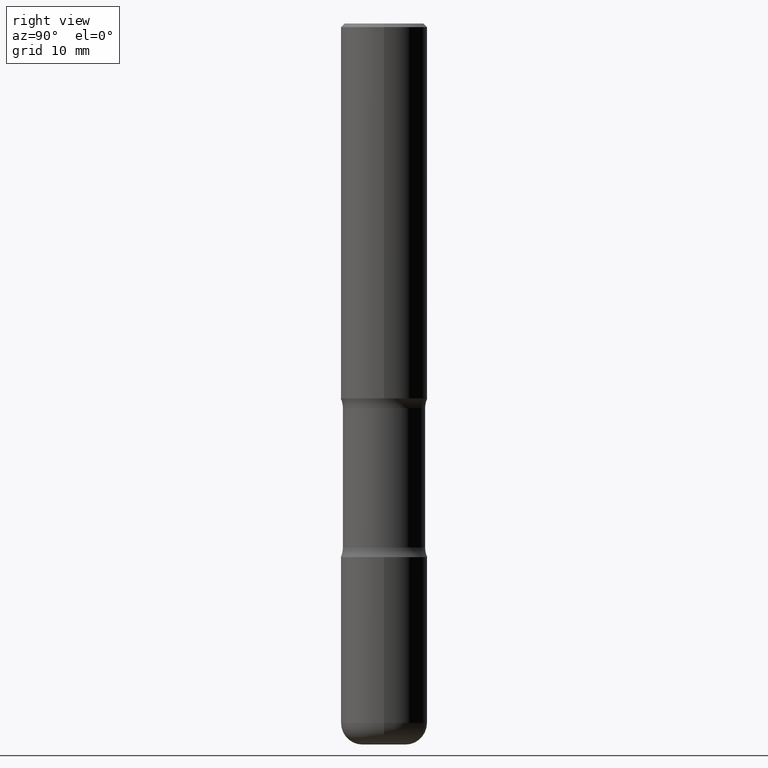
[diagram: clean part render]
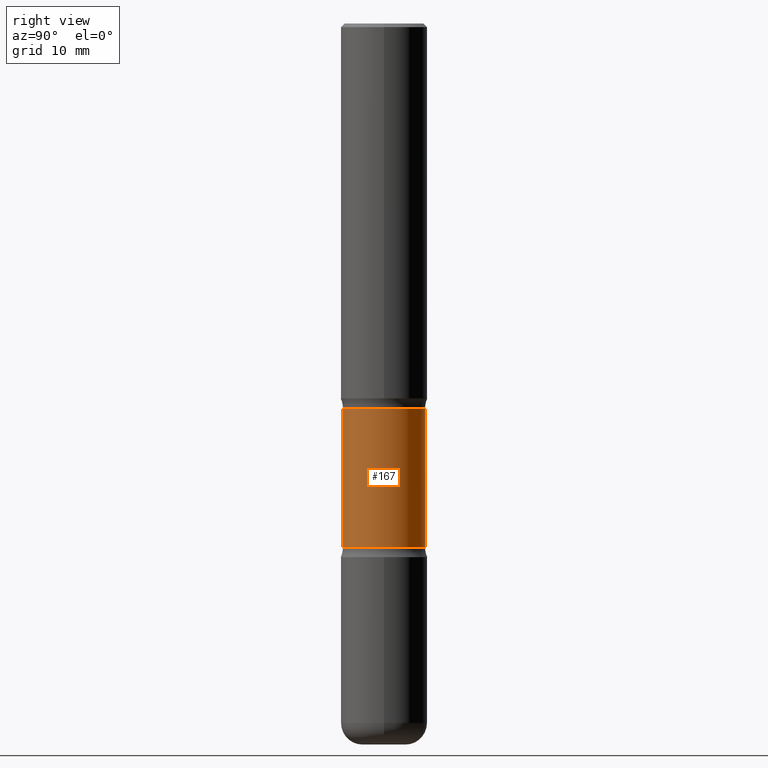
[diagram: same view with one face highlighted and labeled with its STEP entity id]
A machine part, right view. The second image highlights one B-rep face of the part: STEP entity #167.
In plain terms, the highlighted cylindrical surface (partial cylindrical patch) has radius 5.6998 mm, axis along (0, -0, -1).
Its self-contained STEP definition (entity closure, byte-faithful):
#16 = CARTESIAN_POINT ( 'NONE',  ( 6.990709676060807691E-29, -9.993088279580958225E-15, -2.860383398826405354 ) ) ;
#28 = LINE ( 'NONE', #38, #393 ) ;
#31 = VECTOR ( 'NONE', #220, 39.37007874015748143 ) ;
#38 = CARTESIAN_POINT ( 'NONE',  ( -1.539495750699834052E-15, -0.2244000000000135608, -3.936999999999999389 ) ) ;
#49 = CARTESIAN_POINT ( 'NONE',  ( 9.710227154047748282E-29, -1.362793696358492956E-14, -3.937000000000000277 ) ) ;
#59 = CARTESIAN_POINT ( 'NONE',  ( 1.566976824872867821E-15, 0.2243999999999899686, -2.860383398826405799 ) ) ;
#62 = DIRECTION ( 'NONE',  ( 2.525985086076564115E-29, -3.376177443336566513E-15, -1.000000000000000000 ) ) ;
#98 = EDGE_CURVE ( 'NONE', #386, #537, #275, .T. ) ;
#101 = DIRECTION ( 'NONE',  ( 2.525985086076564115E-29, -3.376177443336566513E-15, -1.000000000000000000 ) ) ;
#102 = EDGE_LOOP ( 'NONE', ( #543, #327, #114, #225 ) ) ;
#105 = CARTESIAN_POINT ( 'NONE',  ( 1.566976824872894642E-15, 0.2243999999999863049, -3.937000000000000721 ) ) ;
#108 = CIRCLE ( 'NONE', #384, 0.2243999999999999606 ) ;
#113 = EDGE_CURVE ( 'NONE', #278, #386, #399, .T. ) ;
#114 = ORIENTED_EDGE ( 'NONE', *, *, #98, .F. ) ;
#119 = DIRECTION ( 'NONE',  ( 2.525985086076564115E-29, -3.376177443336566513E-15, -1.000000000000000000 ) ) ;
#158 = EDGE_CURVE ( 'NONE', #278, #316, #108, .T. ) ;
#163 = CARTESIAN_POINT ( 'NONE',  ( -1.579972688886734072E-15, -0.2244000000000073713, -2.100216601173594544 ) ) ;
#167 = ADVANCED_FACE ( 'NONE', ( #451 ), #443, .T. ) ;
#171 = AXIS2_PLACEMENT_3D ( 'NONE', #16, #315, #176 ) ;
#176 = DIRECTION ( 'NONE',  ( 6.982962677686265922E-15, 1.000000000000000000, -2.434802133390609421E-15 ) ) ;
#220 = DIRECTION ( 'NONE',  ( 2.525985086076564115E-29, -3.376177443336566513E-15, -1.000000000000000000 ) ) ;
#225 = ORIENTED_EDGE ( 'NONE', *, *, #113, .F. ) ;
#227 = DIRECTION ( 'NONE',  ( 6.982962677686265922E-15, 1.000000000000000000, -2.434802133390609815E-15 ) ) ;
#231 = CARTESIAN_POINT ( 'NONE',  ( 5.070539682259229331E-29, -7.426630284172150130E-15, -2.100216601173595432 ) ) ;
#272 = DIRECTION ( 'NONE',  ( 6.982962677686265922E-15, 1.000000000000000000, -3.652203200085913934E-15 ) ) ;
#275 = CIRCLE ( 'NONE', #171, 0.2243999999999999606 ) ;
#278 = VERTEX_POINT ( 'NONE', #559 ) ;
#315 = DIRECTION ( 'NONE',  ( 2.525985086076564115E-29, -3.376177443336566513E-15, -1.000000000000000000 ) ) ;
#316 = VERTEX_POINT ( 'NONE', #163 ) ;
#327 = ORIENTED_EDGE ( 'NONE', *, *, #502, .T. ) ;
#384 = AXIS2_PLACEMENT_3D ( 'NONE', #231, #101, #272 ) ;
#386 = VERTEX_POINT ( 'NONE', #59 ) ;
#393 = VECTOR ( 'NONE', #119, 39.37007874015748143 ) ;
#399 = LINE ( 'NONE', #105, #31 ) ;
#443 = CYLINDRICAL_SURFACE ( 'NONE', #504, 0.2243999999999999329 ) ;
#451 = FACE_OUTER_BOUND ( 'NONE', #102, .T. ) ;
#502 = EDGE_CURVE ( 'NONE', #316, #537, #28, .T. ) ;
#504 = AXIS2_PLACEMENT_3D ( 'NONE', #49, #62, #227 ) ;
#506 = CARTESIAN_POINT ( 'NONE',  ( -1.579972688886713168E-15, -0.2244000000000099804, -2.860383398826404466 ) ) ;
#537 = VERTEX_POINT ( 'NONE', #506 ) ;
#543 = ORIENTED_EDGE ( 'NONE', *, *, #158, .T. ) ;
#559 = CARTESIAN_POINT ( 'NONE',  ( 1.566976824872848494E-15, 0.2243999999999925499, -2.100216601173596320 ) ) ;